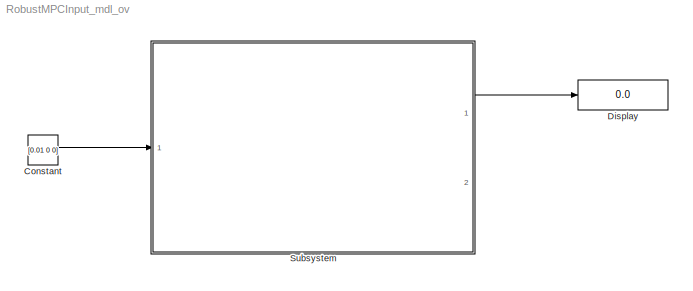
MODEL RobustMPCInput_mdl_ov
KIND model
BLOCK [Constant] Constant
  SID = 26
  Value = [0.01 0 0]
BLOCK [Display] Display
  Decimation = 1
  Lockdown = off
  Ports = [1]
  SID = 27
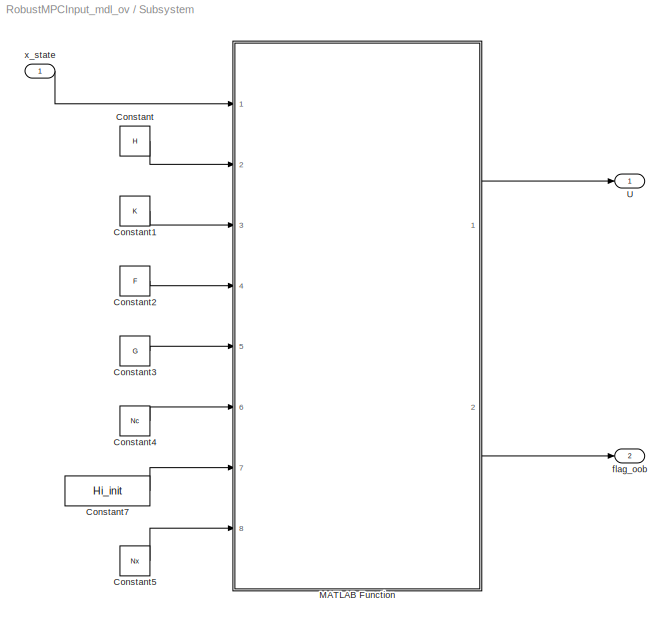
BLOCK [SubSystem] Subsystem
  FunctionWithSeparateData = off
  MaskHideContents = off
  MinAlgLoopOccurrences = off
  Opaque = off
  Ports = [1, 2]
  PropExecContextOutsideSubsystem = off
  RTWSystemCode = Auto
  RequestExecContextInheritance = off
  SID = 14
BLOCK [Constant] Subsystem/Constant
  SID = 2
  Value = H
BLOCK [Constant] Subsystem/Constant1
  SID = 3
  Value = K
BLOCK [Constant] Subsystem/Constant2
  SID = 4
  Value = F
BLOCK [Constant] Subsystem/Constant3
  SID = 5
  Value = G
BLOCK [Constant] Subsystem/Constant4
  SID = 6
  Value = Nc
BLOCK [Constant] Subsystem/Constant5
  SID = 7
  Value = Nx
BLOCK [Constant] Subsystem/Constant7
  SID = 10
  Value = Hi_init
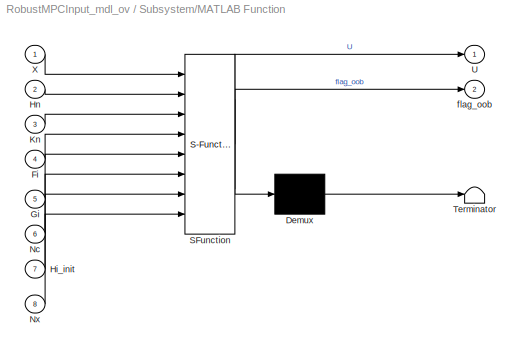
BLOCK [SubSystem] Subsystem/MATLAB Function
  ErrorFcn = Stateflow.Translate.translate
  FunctionWithSeparateData = off
  MaskHideContents = off
  MinAlgLoopOccurrences = off
  Opaque = off
  PermitHierarchicalResolution = ExplicitOnly
  Ports = [8, 2]
  PropExecContextOutsideSubsystem = off
  RTWSystemCode = Auto
  RequestExecContextInheritance = off
  SFBlockType = MATLAB Function
  SID = 1
  TreatAsAtomicUnit = on
BLOCK [Demux] Subsystem/MATLAB Function/ Demux 
  Outputs = 1
  Ports = [1, 1]
  SID = 1::19
BLOCK [S-Function] Subsystem/MATLAB Function/ SFunction 
  EnableBusSupport = on
  FunctionName = sf_sfun
  PortCounts = [8 3]
  Ports = [8, 3]
  SID = 1::18
  Tag = Stateflow S-Function RobustMPCInput_mdl_ov 2
BLOCK [Terminator] Subsystem/MATLAB Function/ Terminator 
  SID = 1::20
BLOCK [Inport] Subsystem/MATLAB Function/Fi
  IconDisplay = Port number
  Port = 4
  SID = 1::23
BLOCK [Inport] Subsystem/MATLAB Function/Gi
  IconDisplay = Port number
  Port = 5
  SID = 1::24
BLOCK [Inport] Subsystem/MATLAB Function/Hi_init
  IconDisplay = Port number
  Port = 7
  SID = 1::28
BLOCK [Inport] Subsystem/MATLAB Function/Hn
  IconDisplay = Port number
  Port = 2
  SID = 1::21
BLOCK [Inport] Subsystem/MATLAB Function/Kn
  IconDisplay = Port number
  Port = 3
  SID = 1::22
BLOCK [Inport] Subsystem/MATLAB Function/Nc
  IconDisplay = Port number
  Port = 6
  SID = 1::25
BLOCK [Inport] Subsystem/MATLAB Function/Nx
  IconDisplay = Port number
  Port = 8
  SID = 1::26
BLOCK [Outport] Subsystem/MATLAB Function/U
  IconDisplay = Port number
  SID = 1::5
BLOCK [Inport] Subsystem/MATLAB Function/X
  IconDisplay = Port number
  SID = 1::1
BLOCK [Outport] Subsystem/MATLAB Function/flag_oob
  IconDisplay = Port number
  Port = 2
  SID = 1::27
BLOCK [Outport] Subsystem/U
  IconDisplay = Port number
  SID = 16
BLOCK [Outport] Subsystem/flag_oob
  IconDisplay = Port number
  Port = 2
  SID = 17
BLOCK [Inport] Subsystem/x_state
  IconDisplay = Port number
  SID = 15
LINE Constant:1 -> Subsystem:1
LINE Subsystem/Constant1:1 -> Subsystem/MATLAB Function:3
LINE Subsystem/Constant2:1 -> Subsystem/MATLAB Function:4
LINE Subsystem/Constant3:1 -> Subsystem/MATLAB Function:5
LINE Subsystem/Constant4:1 -> Subsystem/MATLAB Function:6
LINE Subsystem/Constant5:1 -> Subsystem/MATLAB Function:8
LINE Subsystem/Constant7:1 -> Subsystem/MATLAB Function:7
LINE Subsystem/Constant:1 -> Subsystem/MATLAB Function:2
LINE Subsystem/MATLAB Function/ Demux :1 -> Subsystem/MATLAB Function/ Terminator :1
LINE Subsystem/MATLAB Function/ SFunction :1 -> Subsystem/MATLAB Function/ Demux :1
LINE Subsystem/MATLAB Function/ SFunction :2 -> Subsystem/MATLAB Function/U:1
LINE Subsystem/MATLAB Function/ SFunction :3 -> Subsystem/MATLAB Function/flag_oob:1
LINE Subsystem/MATLAB Function/Fi:1 -> Subsystem/MATLAB Function/ SFunction :4
LINE Subsystem/MATLAB Function/Gi:1 -> Subsystem/MATLAB Function/ SFunction :5
LINE Subsystem/MATLAB Function/Hi_init:1 -> Subsystem/MATLAB Function/ SFunction :7
LINE Subsystem/MATLAB Function/Hn:1 -> Subsystem/MATLAB Function/ SFunction :2
LINE Subsystem/MATLAB Function/Kn:1 -> Subsystem/MATLAB Function/ SFunction :3
LINE Subsystem/MATLAB Function/Nc:1 -> Subsystem/MATLAB Function/ SFunction :6
LINE Subsystem/MATLAB Function/Nx:1 -> Subsystem/MATLAB Function/ SFunction :8
LINE Subsystem/MATLAB Function/X:1 -> Subsystem/MATLAB Function/ SFunction :1
LINE Subsystem/MATLAB Function:1 -> Subsystem/U:1
LINE Subsystem/MATLAB Function:2 -> Subsystem/flag_oob:1
LINE Subsystem/x_state:1 -> Subsystem/MATLAB Function:1
LINE Subsystem:1 -> Display:1
CHART Subsystem/MATLAB Function states=1 transitions=1
  STATE_LABEL 'eML_blk_kernel()'
